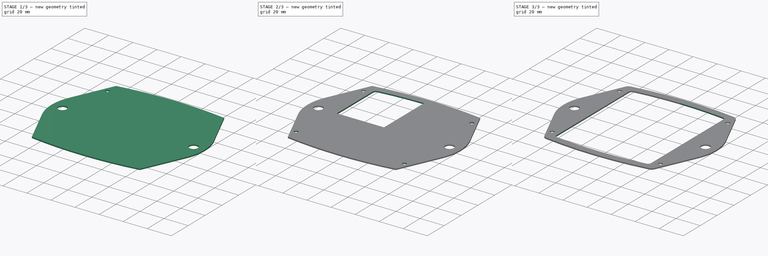
[diagram: build sequence overview — one tinted view per stage of 3, left to right]
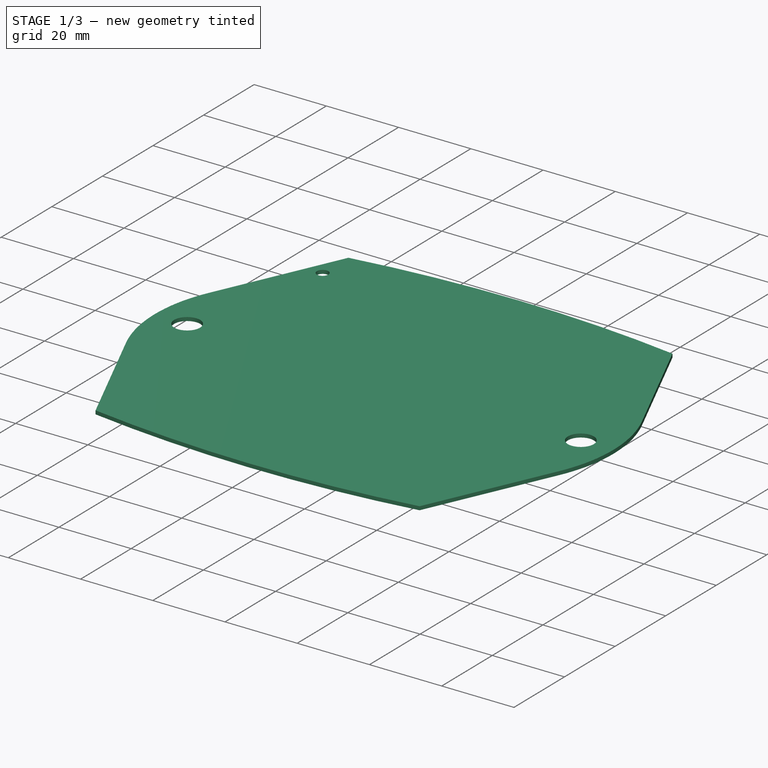
[diagram: stage 1 of 3 — iso view after this stage's code; geometry added in this stage tinted green]
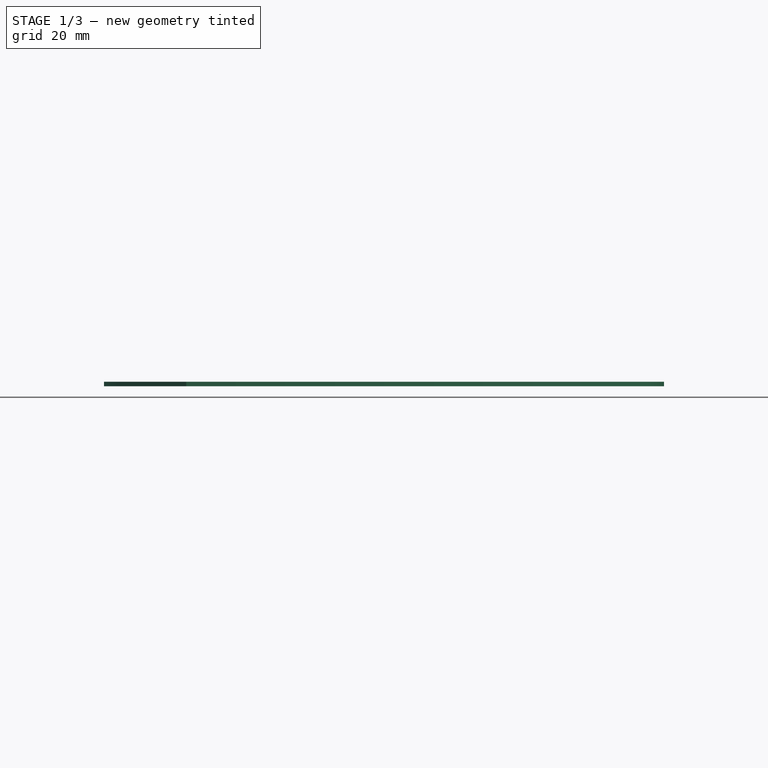
[diagram: stage 1 of 3 — front view after this stage's code; geometry added in this stage tinted green]
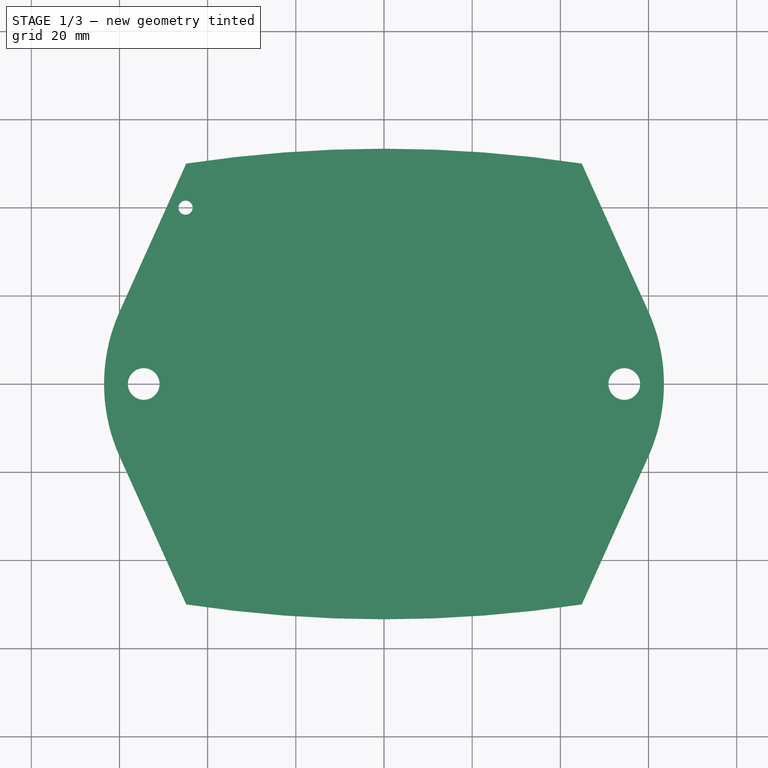
[diagram: stage 1 of 3 — top view after this stage's code; geometry added in this stage tinted green]
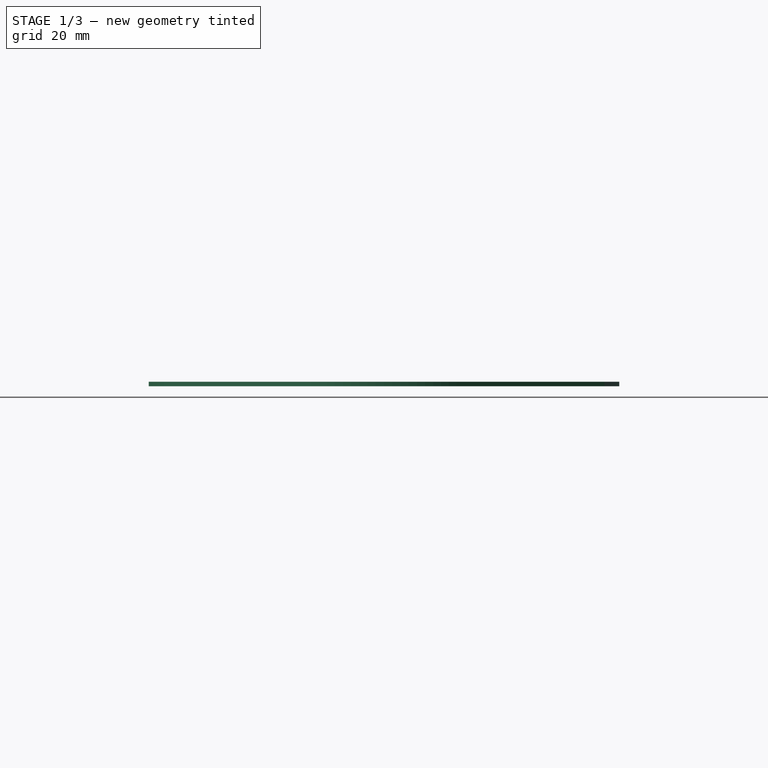
[diagram: stage 1 of 3 — right view after this stage's code; geometry added in this stage tinted green]
FCSTD DOCUMENT  (FreeCAD 0.17R13509 (Git))
Label: enclosure_seal
License: All rights reserved
LicenseURL: http://en.wikipedia.org/wiki/All_rights_reserved
objects: PartDesign::Mirrored×6, Drawing::FeatureViewPython×4, Sketcher::SketchObject×3, PartDesign::MultiTransform×3, Drawing::FeatureViewPart×3, PartDesign::Pocket×2, PartDesign::Pad×1, PartDesign::Fillet×1, PartDesign::Body×1, Part::FeaturePython×1, Drawing::FeaturePage×1
note: 21 computed .brp shape members not serialized (recipe doc carries the construction recipe); baked Part::Feature solids carry a one-line shape summary decoded from their .brp

FEATURE [Sketcher::SketchObject] Sketch010
  MapMode = 5
  sketch-geometry (9):
    g0: LineSegment StartX=44.8611 StartY=-50 StartZ=0 EndX=59.9759 EndY=-16.4167 EndZ=0
    g1: ArcOfCircle CenterX=23.5 CenterY=0 CenterZ=0 NormalX=0 NormalY=0 NormalZ=1 AngleXU=0 Radius=40 StartAngle=5.86027 EndAngle=6.28319
    g2: Circle [constr] CenterX=54.5 CenterY=0 CenterZ=0 NormalX=0 NormalY=0 NormalZ=1 AngleXU=0 Radius=6
    g3: ArcOfCircle CenterX=54.5 CenterY=0 CenterZ=0 NormalX=0 NormalY=0 NormalZ=1 AngleXU=0 Radius=3.6 StartAngle=3.14159 EndAngle=6.28319
    g4: LineSegment StartX=58.1 StartY=0 StartZ=0 EndX=63.5 EndY=0 EndZ=0
    g5: LineSegment StartX=0 StartY=-53.3732 StartZ=0 EndX=0 EndY=0 EndZ=0
    g6: LineSegment StartX=0 StartY=0 StartZ=0 EndX=50.9 EndY=0 EndZ=0
    g7: ArcOfCircle CenterX=0 CenterY=246.627 CenterZ=0 NormalX=0 NormalY=0 NormalZ=1 AngleXU=0 Radius=300 StartAngle=4.71239 EndAngle=4.86249
    g8: ArcOfCircle [constr] CenterX=-8955 CenterY=0 CenterZ=0 NormalX=0 NormalY=0 NormalZ=1 AngleXU=0 Radius=9000 StartAngle=6.27763 EndAngle=6.28319
  constraints (29):
    c: Tangent(g0,g1) = -1.5708
    c: Radius(g2) = 6
    c: PointOnObject(g1,g-1)
    c: Perpendicular(g1,g-1)
    c: Coincident(g4,g1)
    c: PointOnObject(g3,g-1)
    c: PointOnObject(g3,g-1)
    c: Radius(g3) = 3.6
    c: Coincident(g3,g2)
    c: Radius(g1) = 40
    c: PointOnObject(g5,g-2)
    c: Vertical(g5)
    c: PointOnObject(g6,g-1)
    c: Coincident(g6,g3)
    c: PointOnObject(g2,g-1)
    c: Coincident(g3,g4)
    c: Coincident(g5,g6)
    c: PointOnObject(g7,g-2)
    c: Coincident(g5,g7)
    c: Radius(g7) = 300
    c: PointOnObject(g8,g-1)
    c: PointOnObject(g8,g-1)
    c: Radius(g8) = 9000
    c: DistanceY(g8,g-1) = 50
    c: Coincident(g0,g7)
    c: Coincident(g0,g8)
    c: DistanceX(g-1,g8) = 45
    c: DistanceX(g8,g2) = 9.5
    c: DistanceX(g4,g4) = 5.4
FEATURE [PartDesign::Pad] Pad
  Length = 1
  Length2 = 100
  Profile = -> Sketch010
  Type = 0
FEATURE [PartDesign::Mirrored] Mirrored
  MirrorPlane = -> YZ_Plane
FEATURE [PartDesign::Mirrored] Mirrored001
  MirrorPlane = -> XZ_Plane
FEATURE [PartDesign::MultiTransform] MultiTransform
  BaseFeature = -> Pad
  Originals = -> [Pad]
  Transformations = -> [Mirrored,Mirrored001]
FEATURE [Sketcher::SketchObject] Sketch015
  MapMode = 5
  sketch-geometry (1):
    g0: Circle CenterX=-45 CenterY=40 CenterZ=0 NormalX=0 NormalY=0 NormalZ=1 AngleXU=0 Radius=1.6
  constraints (3):
    c: Radius(g0) = 1.6
    c: DistanceY(g-1,g0) = 40
    c: DistanceX(g0,g-1) = 45
FEATURE [Sketcher::SketchObject] Sketch016
  MapMode = 5
  sketch-geometry (5):
    g0: LineSegment StartX=-39.2 StartY=0 StartZ=0 EndX=0 EndY=0 EndZ=0
    g1: LineSegment StartX=0 StartY=0 StartZ=0 EndX=-3.1e-11 EndY=47.6 EndZ=0
    g2: ArcOfCircle CenterX=-36.7 CenterY=42.8276 CenterZ=0 NormalX=0 NormalY=0 NormalZ=1 AngleXU=0 Radius=2.5 StartAngle=1.69448 EndAngle=3.14159
    g3: ArcOfCircle CenterX=0 CenterY=-252.4 CenterZ=0 NormalX=0 NormalY=0 NormalZ=1 AngleXU=0 Radius=300 StartAngle=1.5708 EndAngle=1.69447
    g4: LineSegment StartX=-39.2 StartY=0 StartZ=0 EndX=-39.2 EndY=42.8276 EndZ=0
  constraints (16):
    c: PointOnObject(g0,g-1)
    c: PointOnObject(g1,g-2)
    c: DistanceY(g-1,g1) = 47.6
    c: DistanceX(g0,g-1) = 39.2
    c: Coincident(g0,g-1)
    c: Coincident(g1,g-1)
    c: Radius(g2) = 2.5
    c: Coincident(g3,g2)
    c: Coincident(g1,g3)
    c: Tangent(g3,g2)
    c: PointOnObject(g3,g-2)
    c: Radius(g3) = 300
    c: Coincident(g4,g0)
    c: Coincident(g4,g2)
    c: Vertical(g4)
    c: Tangent(g2,g4)
FEATURE [PartDesign::Pocket] Pocket
  BaseFeature = -> MultiTransform
  Length = 5
  Length2 = 100
  Midplane = true
  Profile = -> Sketch015
  Type = 1
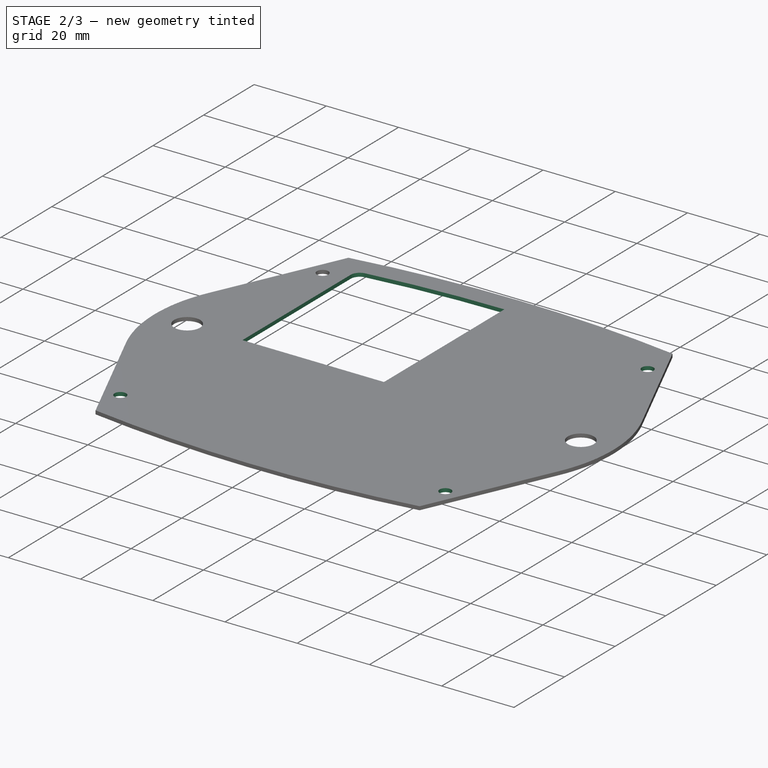
[diagram: stage 2 of 3 — iso view after this stage's code; geometry added in this stage tinted green]
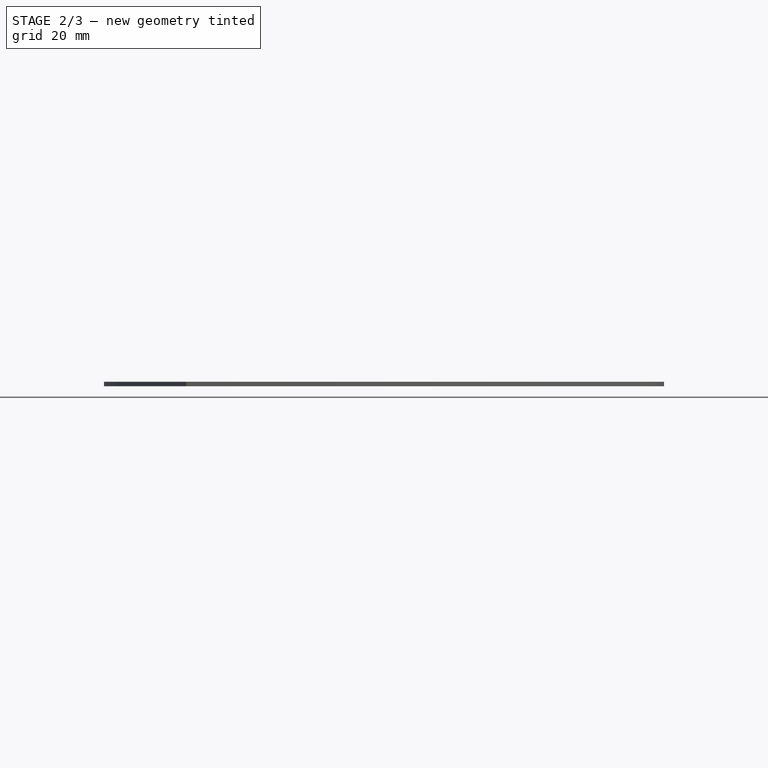
[diagram: stage 2 of 3 — front view after this stage's code; geometry added in this stage tinted green]
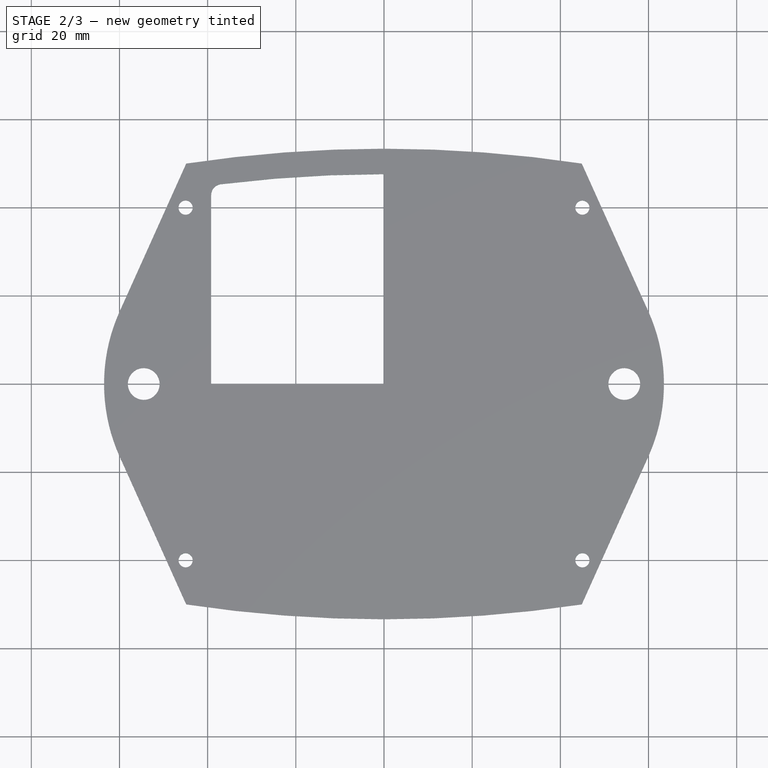
[diagram: stage 2 of 3 — top view after this stage's code; geometry added in this stage tinted green]
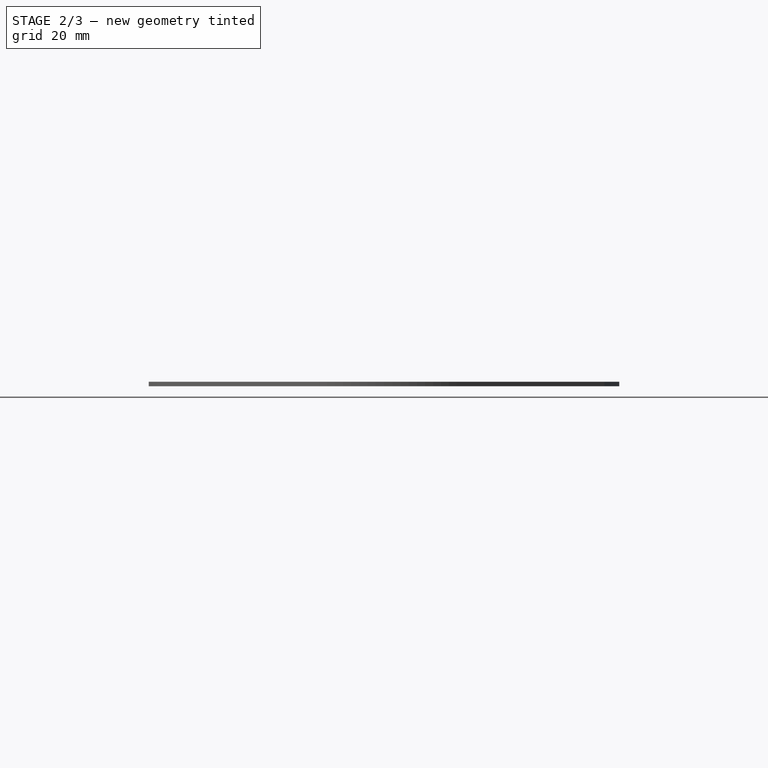
[diagram: stage 2 of 3 — right view after this stage's code; geometry added in this stage tinted green]
FEATURE [PartDesign::Mirrored] Mirrored002
  MirrorPlane = -> XZ_Plane
FEATURE [PartDesign::Mirrored] Mirrored003
  MirrorPlane = -> YZ_Plane
FEATURE [PartDesign::MultiTransform] MultiTransform001
  BaseFeature = -> Pocket
  Originals = -> [Pocket]
  Transformations = -> [Mirrored002,Mirrored003]
FEATURE [PartDesign::Pocket] Pocket001
  BaseFeature = -> MultiTransform001
  Length = 5
  Length2 = 100
  Midplane = true
  Profile = -> Sketch016
  Type = 1
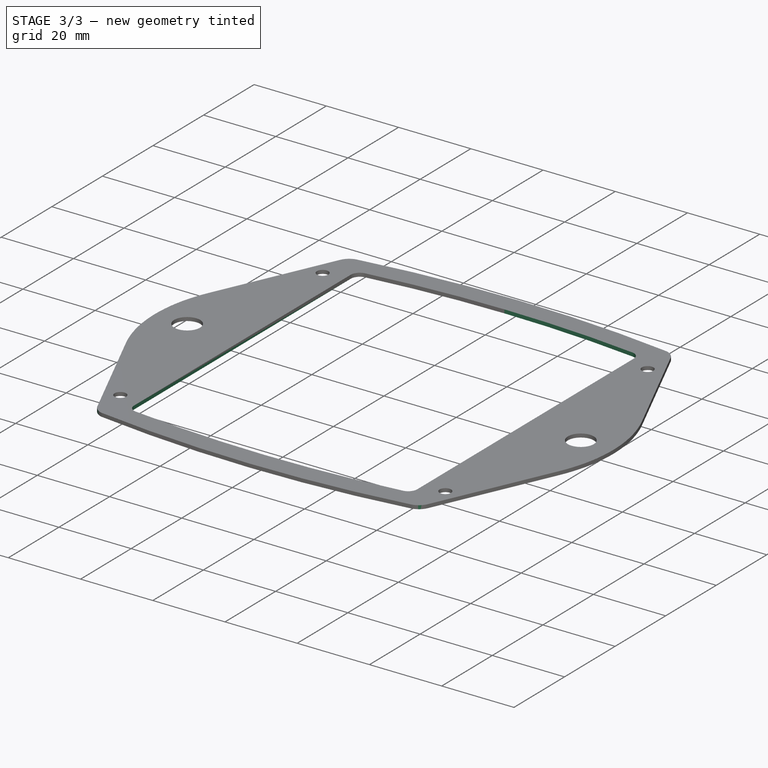
[diagram: stage 3 of 3 — iso view after this stage's code; geometry added in this stage tinted green]
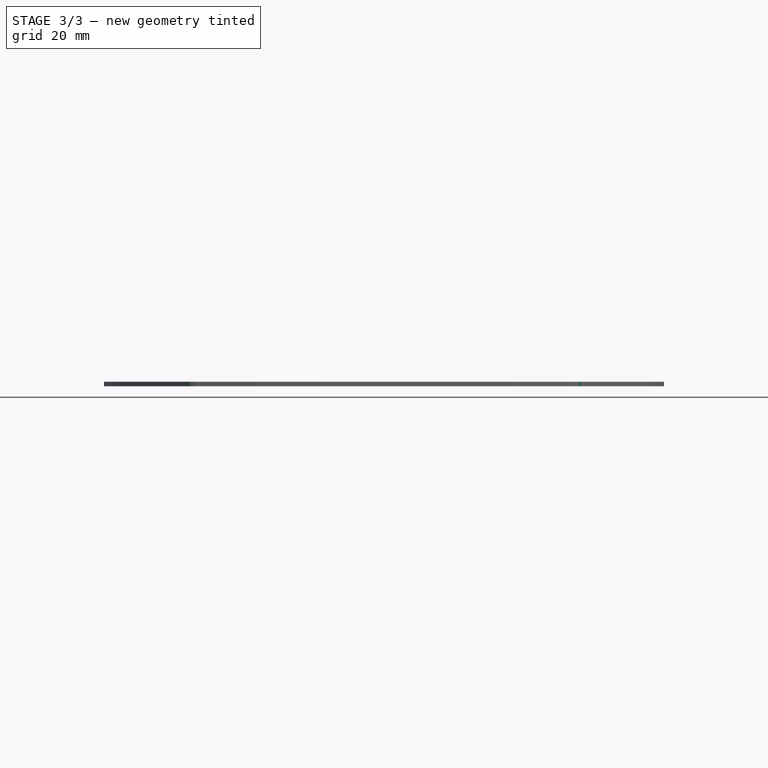
[diagram: stage 3 of 3 — front view after this stage's code; geometry added in this stage tinted green]
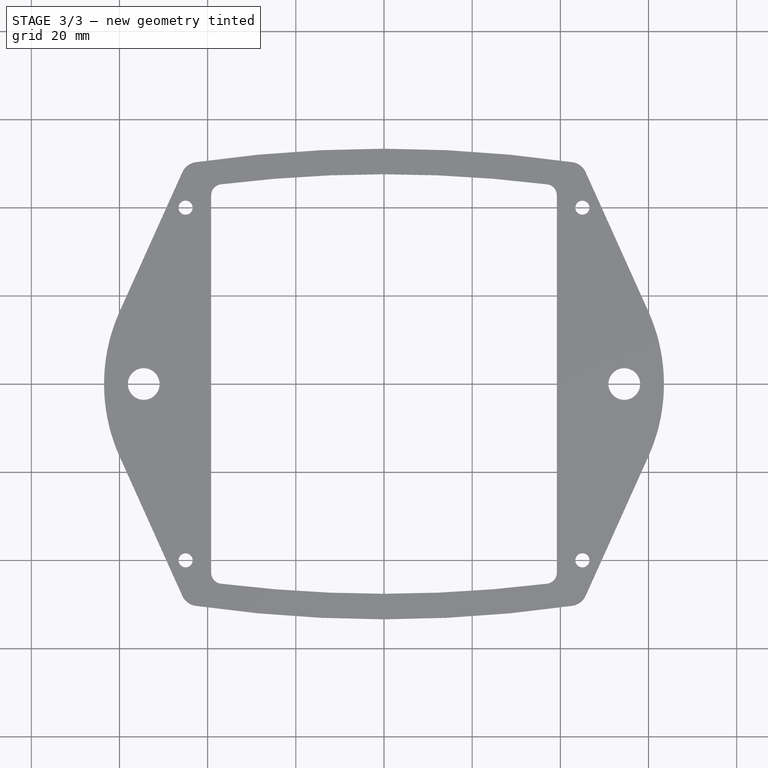
[diagram: stage 3 of 3 — top view after this stage's code; geometry added in this stage tinted green]
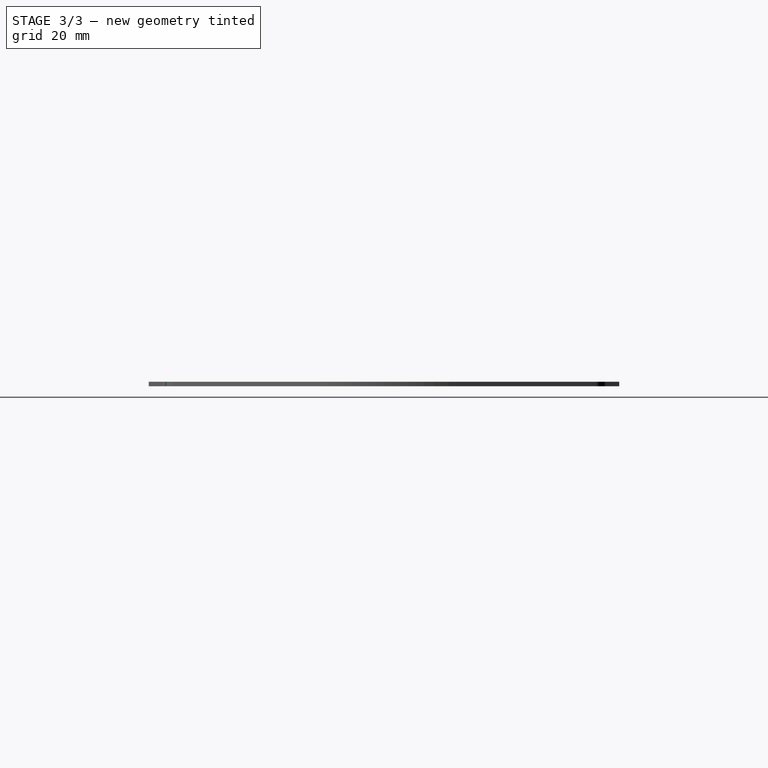
[diagram: stage 3 of 3 — right view after this stage's code; geometry added in this stage tinted green]
FEATURE [PartDesign::Mirrored] Mirrored004
  MirrorPlane = -> XZ_Plane
FEATURE [PartDesign::Mirrored] Mirrored005
  MirrorPlane = -> YZ_Plane
FEATURE [PartDesign::MultiTransform] MultiTransform002
  BaseFeature = -> Pocket001
  Originals = -> [Pocket001]
  Transformations = -> [Mirrored004,Mirrored005]
FEATURE [PartDesign::Fillet] Fillet
  Base = -> MultiTransform002 [Edge75,Edge1,Edge107,Edge29]
  BaseFeature = -> MultiTransform002
  Radius = 4
FEATURE [PartDesign::Body] Body
  Group = -> [Sketch010,Pad,MultiTransform,Mirrored,Mirrored001,Sketch015,Sketch016,Pocket,MultiTransform001,Mirrored002,Mirrored003,Pocket001,MultiTransform002,Mirrored004,Mirrored005,Fillet]
  Origin = -> Origin
  Tip = -> Fillet
FEATURE [Part::FeaturePython] refine  label="refine_Fillet"  # WARN: FeaturePython — macro-defined, semantics opaque (R4)
  Base = -> Fillet
FEATURE [Drawing::FeatureViewPart] Ortho  label="Ortho_0_0"
  Direction = (1,0,0)
  HiddenWidth = 0.15
  LineWidth = 0.35
  Rotation = -90
  ShowHiddenLines = false
  ShowSmoothLines = false
  Source = -> refine
  Tolerance = 0.05
  ViewResult = <blob: 4682 chars omitted>
  Visible = false
  X = 125.458
  Y = 197.333
FEATURE [Drawing::FeatureViewPart] Ortho001  label="Ortho_0_1"
  Direction = (0,0,1)
  HiddenWidth = 0.15
  LineWidth = 0.35
  Rotation = 90
  ShowHiddenLines = false
  ShowSmoothLines = false
  Source = -> refine
  Tolerance = 0.05
  ViewResult = <blob: 2246 chars omitted>
  Visible = false
  X = 125.458
  Y = 103.167
FEATURE [Drawing::FeatureViewPart] Ortho002  label="Ortho_1_1"
  Direction = (0.57735,0.57735,0.57735)
  HiddenWidth = 0.15
  LineWidth = 0.35
  Rotation = 120
  ShowHiddenLines = false
  ShowSmoothLines = false
  Source = -> refine
  Tolerance = 0.05
  ViewResult = <blob: 6121 chars omitted>
  Visible = false
  X = 294.415
  Y = 103.575
FEATURE [Drawing::FeatureViewPython] dim001  # drawing view (typed FeaturePython)
  Rotation = 0
  ViewResult = <g> \n  <line x1="70.084800" y1="196.333000" x2="66.494463" y2="196.333000" style="stroke:rgb(0,0,255);stroke-width:0.50" />\n<line x1="70.084800" y1="197.333000" x2="66.494463" y2="197.333000" style="stroke:rgb(0,0,255);stroke-width:0.50" />\n<line x1="67.494463" y1="196.333000" x2="67.494463" y2="197.333000" style="stroke:rgb(0,0,255);stroke-width:0.50" /> \n  <polygon points="67.494463,197.333000 66.494463,200.333000 67.494463,201.333000 68.494463,200.333000" style="fill:rgb(0,0,255);stroke:rgb(0,0,255);stroke-width:0" /><polygon points="67.494463,196.333000 68.494463,193.333000 67.494463,192.333000 66.494463,193.333000" style="fill:rgb(0,0,255);stroke:rgb(0,0,255);stroke-width:0" /> \n  <text x="65.494463" y="196.833000" font-family="inherit" font-size="3.6" fill="rgb(0,0,255)" text-anchor="middle" transform="rotate(-90.000000 65.494463,196.833000)" >1</text> </g>
  Visible = false
  X = 0
  Y = 0
  arrowL1 = 3
  arrowL2 = 1
  arrowW = 2
  arrow_scheme = 0
  autoPlaceOffset = 2
  autoPlaceText = true
  click1_x = 67.4945
  click1_y = 196.67
  click2_x = 67.4945
  click2_y = 196.67
  comma_decimal_place = false
  dimension_line_overshoot = 1
  gap_datum_points = 2
  halfDimension_linear = false
  lineColor = rgb(0,0,255)
  strokeWidth = 0.5
  textFormat_linear = %(value)3.3f
  textRenderer_color = rgb(0,0,255)
  textRenderer_family = inherit
  textRenderer_size = 3.6
  unit_custom_scale = 1
  unit_scheme = 0
FEATURE [Drawing::FeatureViewPython] dim002  # drawing view (typed FeaturePython)
  Rotation = 0
  ViewResult = <g> \n  <line x1="180.831200" y1="196.333000" x2="185.743720" y2="196.333000" style="stroke:rgb(0,0,255);stroke-width:0.50" />\n<line x1="180.831200" y1="197.333000" x2="185.743720" y2="197.333000" style="stroke:rgb(0,0,255);stroke-width:0.50" />\n<line x1="184.743720" y1="196.333000" x2="184.743720" y2="197.333000" style="stroke:rgb(0,0,255);stroke-width:0.50" /> \n  <polygon points="184.743720,197.333000 183.743720,200.333000 184.743720,201.333000 185.743720,200.333000" style="fill:rgb(0,0,255);stroke:rgb(0,0,255);stroke-width:0" /><polygon points="184.743720,196.333000 185.743720,193.333000 184.743720,192.333000 183.743720,193.333000" style="fill:rgb(0,0,255);stroke:rgb(0,0,255);stroke-width:0" /> \n  <text x="189.323651" y="197.888717" font-family="inherit" font-size="3.6" fill="rgb(0,0,255)" text-anchor="inherit" transform="rotate(-90.000000 189.323651,197.888717)" >1</text> </g>
  Visible = false
  X = 0
  Y = 0
  arrowL1 = 3
  arrowL2 = 1
  arrowW = 2
  arrow_scheme = 0
  autoPlaceOffset = 2
  autoPlaceText = false
  click1_x = 184.744
  click1_y = 197.591
  click2_x = 189.324
  click2_y = 197.889
  comma_decimal_place = false
  dimension_line_overshoot = 1
  gap_datum_points = 2
  halfDimension_linear = false
  lineColor = rgb(0,0,255)
  strokeWidth = 0.5
  textFormat_linear = %(value)3.3f
  textRenderer_color = rgb(0,0,255)
  textRenderer_family = inherit
  textRenderer_size = 3.6
  unit_custom_scale = 1
  unit_scheme = 0
FEATURE [Drawing::FeatureViewPython] dim003  # drawing view (typed FeaturePython)
  Rotation = 0
  ViewResult = <g> \n  <line x1="127.458000" y1="166.667000" x2="195.268845" y2="166.667000" style="stroke:rgb(0,0,255);stroke-width:0.50" />\n<line x1="127.458000" y1="39.667000" x2="195.268845" y2="39.667000" style="stroke:rgb(0,0,255);stroke-width:0.50" />\n<line x1="194.268845" y1="166.667000" x2="194.268845" y2="39.667000" style="stroke:rgb(0,0,255);stroke-width:0.50" /> \n  <polygon points="194.268845,39.667000 193.268845,42.667000 194.268845,43.667000 195.268845,42.667000" style="fill:rgb(0,0,255);stroke:rgb(0,0,255);stroke-width:0" /><polygon points="194.268845,166.667000 195.268845,163.667000 194.268845,162.667000 193.268845,163.667000" style="fill:rgb(0,0,255);stroke:rgb(0,0,255);stroke-width:0" /> \n  <text x="192.268845" y="103.167000" font-family="inherit" font-size="3.6" fill="rgb(0,0,255)" text-anchor="middle" transform="rotate(-90.000000 192.268845,103.167000)" >127</text> </g>
  Visible = false
  X = 0
  Y = 0
  arrowL1 = 3
  arrowL2 = 1
  arrowW = 2
  arrow_scheme = 0
  autoPlaceOffset = 2
  autoPlaceText = true
  click1_x = 194.269
  click1_y = 53.7078
  click2_x = 194.269
  click2_y = 53.7078
  comma_decimal_place = false
  dimension_line_overshoot = 1
  gap_datum_points = 2
  halfDimension_linear = false
  lineColor = rgb(0,0,255)
  strokeWidth = 0.5
  textFormat_linear = %(value)3.3f
  textRenderer_color = rgb(0,0,255)
  textRenderer_family = inherit
  textRenderer_size = 3.6
  unit_custom_scale = 1
  unit_scheme = 0
FEATURE [Drawing::FeatureViewPython] dim004  # drawing view (typed FeaturePython)
  Rotation = 0
  ViewResult = <g> \n  <line x1="178.831200" y1="101.167000" x2="178.831200" y2="30.917788" style="stroke:rgb(0,0,255);stroke-width:0.50" />\n<line x1="72.084800" y1="101.167000" x2="72.084800" y2="30.917788" style="stroke:rgb(0,0,255);stroke-width:0.50" />\n<line x1="178.831200" y1="31.917788" x2="72.084800" y2="31.917788" style="stroke:rgb(0,0,255);stroke-width:0.50" /> \n  <polygon points="72.084800,31.917788 75.084800,32.917788 76.084800,31.917788 75.084800,30.917788" style="fill:rgb(0,0,255);stroke:rgb(0,0,255);stroke-width:0" /><polygon points="178.831200,31.917788 175.831200,30.917788 174.831200,31.917788 175.831200,32.917788" style="fill:rgb(0,0,255);stroke:rgb(0,0,255);stroke-width:0" /> \n  <text x="125.458000" y="29.917788" font-family="inherit" font-size="3.6" fill="rgb(0,0,255)" text-anchor="middle" transform="rotate(0.000000 125.458000,29.917788)" >106.746</text> </g>
  Visible = false
  X = 0
  Y = 0
  arrowL1 = 3
  arrowL2 = 1
  arrowW = 2
  arrow_scheme = 0
  autoPlaceOffset = 2
  autoPlaceText = true
  click1_x = 122.147
  click1_y = 31.9178
  click2_x = 122.147
  click2_y = 31.9178
  comma_decimal_place = false
  dimension_line_overshoot = 1
  gap_datum_points = 2
  halfDimension_linear = false
  lineColor = rgb(0,0,255)
  strokeWidth = 0.5
  textFormat_linear = %(value)3.3f
  textRenderer_color = rgb(0,0,255)
  textRenderer_family = inherit
  textRenderer_size = 3.6
  unit_custom_scale = 1
  unit_scheme = 0
FEATURE [Drawing::FeaturePage] Page
  EditableTexts = <owner> OY | UW HCU Enclosure Seal | Material: Silicone 1mm black | All dimensions in mm | A3 | X / Y | SCALE | PN | DN | DD/MM/YYYY | REV A
  Group = -> [Ortho,Ortho001,Ortho002,dim001,dim002,dim003,dim004]
  Template = <path>
note: 1 file-system path scrubbed to <path> (originals preserved in the JSON sidecar)
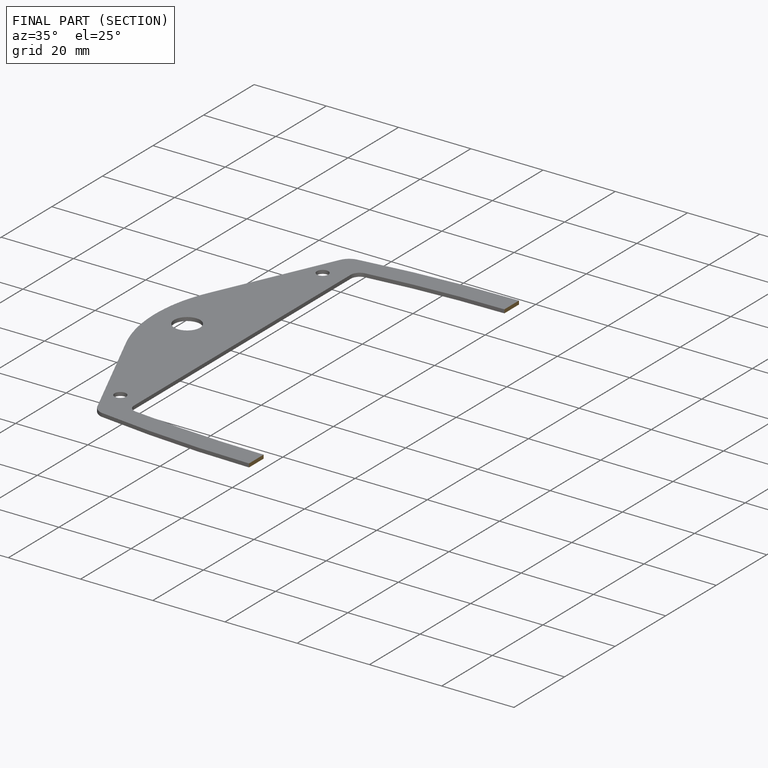
[diagram: finished part — half-section view (interior)]
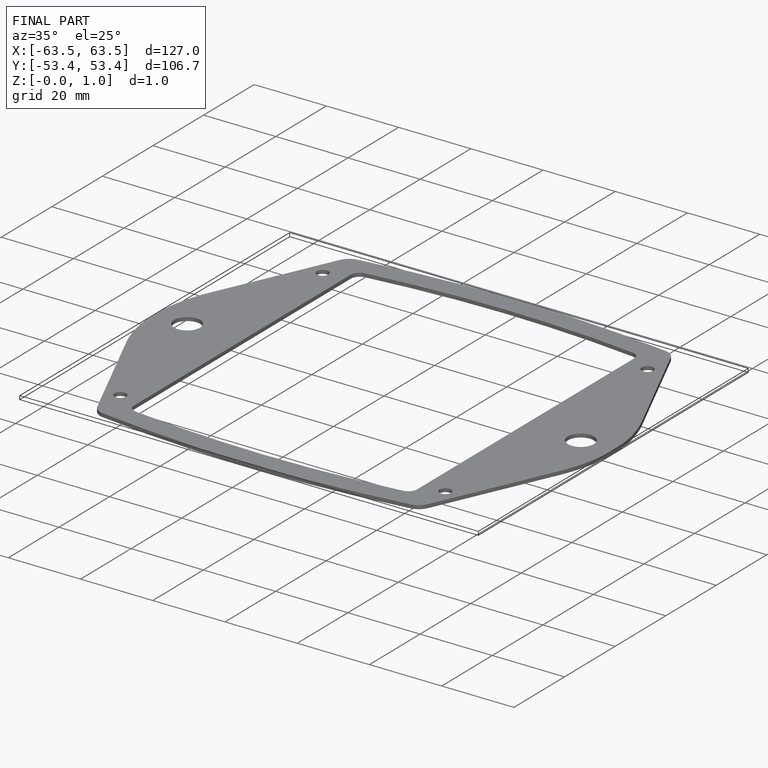
[diagram: finished part — iso view with bounding-box wireframe]
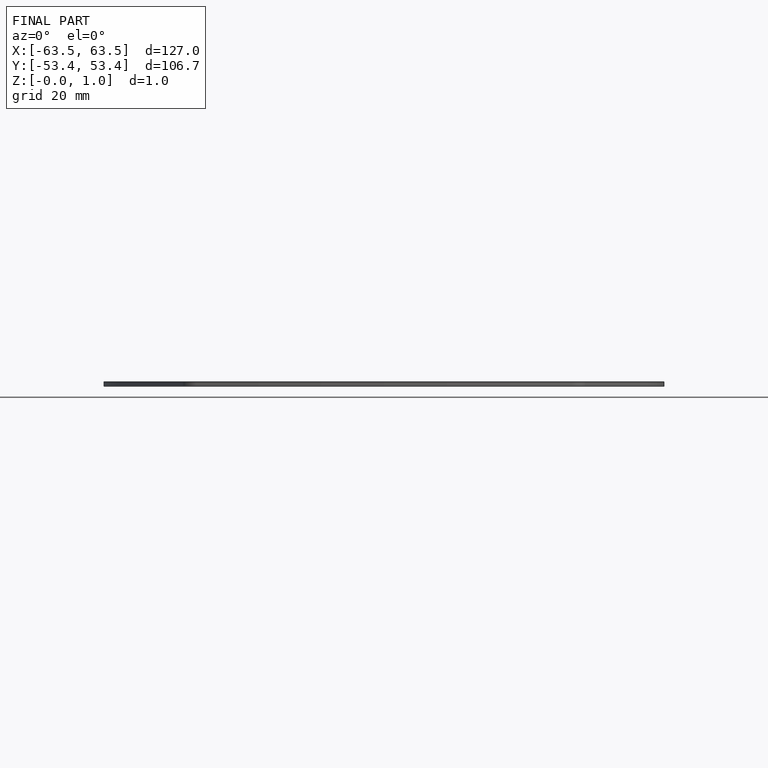
[diagram: finished part — front view with bounding-box wireframe]
